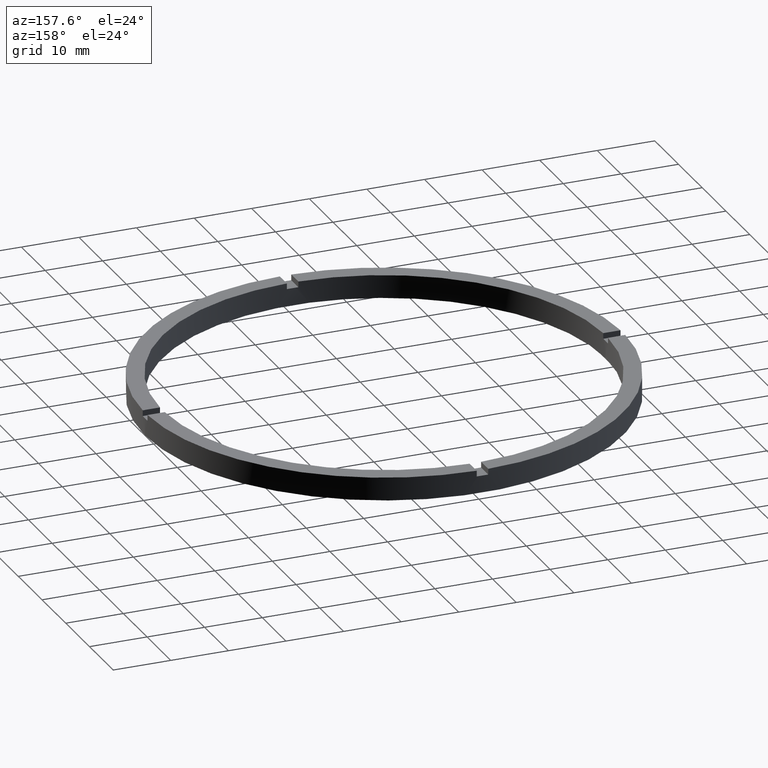
[diagram: clean part render]
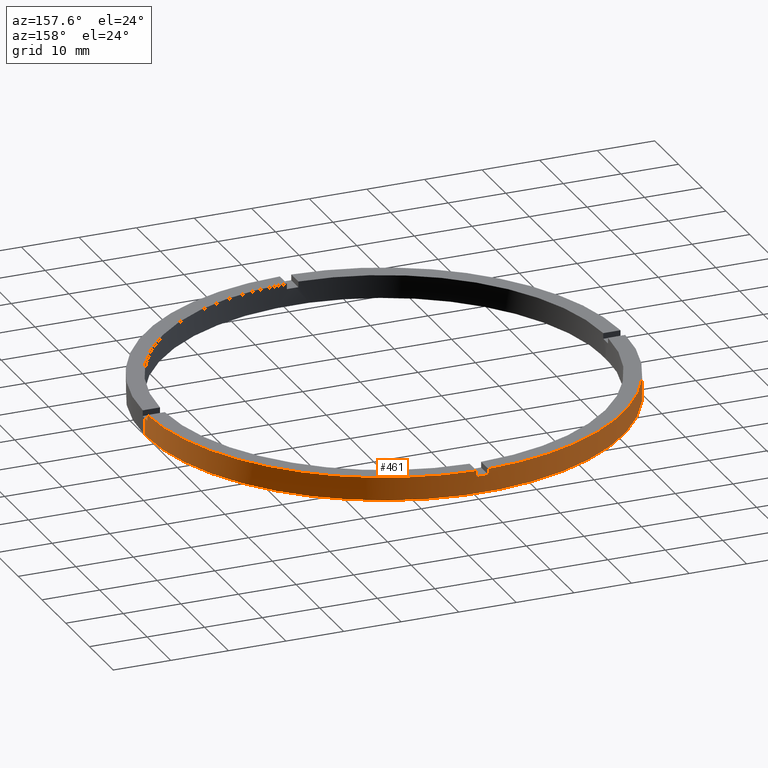
[diagram: same view with one face highlighted and labeled with its STEP entity id]
A machine part, auxiliary view. The second image highlights one B-rep face of the part: STEP entity #461.
In plain terms, the highlighted cylindrical surface (partial cylindrical patch) has radius 41.5 mm, axis along (-0, -0, -1).
Its self-contained STEP definition (entity closure, byte-faithful):
#6 = EDGE_CURVE ( 'NONE', #448, #267, #406, .T. ) ;
#14 = VERTEX_POINT ( 'NONE', #265 ) ;
#16 = VERTEX_POINT ( 'NONE', #416 ) ;
#23 = DIRECTION ( 'NONE',  ( 1.000000000000000000, 0.000000000000000000, 0.000000000000000000 ) ) ;
#24 = VERTEX_POINT ( 'NONE', #132 ) ;
#25 = EDGE_CURVE ( 'NONE', #484, #14, #152, .T. ) ;
#28 = ORIENTED_EDGE ( 'NONE', *, *, #82, .F. ) ;
#30 = ORIENTED_EDGE ( 'NONE', *, *, #25, .F. ) ;
#38 = EDGE_LOOP ( 'NONE', ( #160, #551, #166, #28, #414, #542, #295, #675, #30, #469, #772, #519 ) ) ;
#39 = DIRECTION ( 'NONE',  ( -0.000000000000000000, -0.000000000000000000, -1.000000000000000000 ) ) ;
#47 = CARTESIAN_POINT ( 'NONE',  ( -1.000000000000025757, 41.48795005781799716, 4.000000000000000000 ) ) ;
#50 = AXIS2_PLACEMENT_3D ( 'NONE', #272, #370, #513 ) ;
#51 = CARTESIAN_POINT ( 'NONE',  ( -41.48795005781799716, 0.9999999999999711342, 4.000000000000000000 ) ) ;
#52 = DIRECTION ( 'NONE',  ( 0.000000000000000000, 0.000000000000000000, 1.000000000000000000 ) ) ;
#54 = CARTESIAN_POINT ( 'NONE',  ( 0.000000000000000000, 0.000000000000000000, 4.000000000000000000 ) ) ;
#66 = CARTESIAN_POINT ( 'NONE',  ( -41.50000000000000000, 0.000000000000000000, 4.000000000000000000 ) ) ;
#74 = CARTESIAN_POINT ( 'NONE',  ( -1.000000000000025757, 41.48795005781799716, 4.000000000000000000 ) ) ;
#82 = EDGE_CURVE ( 'NONE', #368, #16, #686, .T. ) ;
#111 = AXIS2_PLACEMENT_3D ( 'NONE', #216, #52, #288 ) ;
#120 = CARTESIAN_POINT ( 'NONE',  ( 41.50000000000000000, 5.082284216461515748E-15, 0.000000000000000000 ) ) ;
#132 = CARTESIAN_POINT ( 'NONE',  ( -41.48795005781799716, 0.9999999999999711342, 3.000000000000000000 ) ) ;
#133 = CARTESIAN_POINT ( 'NONE',  ( 0.9999999999999742428, 41.48795005781799716, 3.000000000000000000 ) ) ;
#141 = DIRECTION ( 'NONE',  ( 0.000000000000000000, 0.000000000000000000, 1.000000000000000000 ) ) ;
#152 = CIRCLE ( 'NONE', #587, 41.50000000000000000 ) ;
#160 = ORIENTED_EDGE ( 'NONE', *, *, #608, .F. ) ;
#161 = VERTEX_POINT ( 'NONE', #120 ) ;
#166 = ORIENTED_EDGE ( 'NONE', *, *, #328, .T. ) ;
#168 = AXIS2_PLACEMENT_3D ( 'NONE', #660, #732, #207 ) ;
#185 = LINE ( 'NONE', #617, #479 ) ;
#200 = CIRCLE ( 'NONE', #642, 41.50000000000000000 ) ;
#207 = DIRECTION ( 'NONE',  ( -1.000000000000000000, 0.000000000000000000, 0.000000000000000000 ) ) ;
#208 = LINE ( 'NONE', #74, #211 ) ;
#211 = VECTOR ( 'NONE', #217, 1000.000000000000000 ) ;
#216 = CARTESIAN_POINT ( 'NONE',  ( 0.000000000000000000, 0.000000000000000000, 3.000000000000000000 ) ) ;
#217 = DIRECTION ( 'NONE',  ( -0.000000000000000000, -0.000000000000000000, -1.000000000000000000 ) ) ;
#228 = VECTOR ( 'NONE', #677, 1000.000000000000000 ) ;
#235 = CIRCLE ( 'NONE', #111, 41.50000000000000000 ) ;
#249 = DIRECTION ( 'NONE',  ( -0.000000000000000000, -0.000000000000000000, -1.000000000000000000 ) ) ;
#265 = CARTESIAN_POINT ( 'NONE',  ( -1.000000000000025757, 41.48795005781799716, 3.000000000000000000 ) ) ;
#267 = VERTEX_POINT ( 'NONE', #342 ) ;
#272 = CARTESIAN_POINT ( 'NONE',  ( 0.000000000000000000, 0.000000000000000000, 4.000000000000000000 ) ) ;
#276 = DIRECTION ( 'NONE',  ( -0.000000000000000000, -0.000000000000000000, -1.000000000000000000 ) ) ;
#282 = CARTESIAN_POINT ( 'NONE',  ( 0.000000000000000000, 0.000000000000000000, 3.000000000000000000 ) ) ;
#288 = DIRECTION ( 'NONE',  ( 1.000000000000000000, 0.000000000000000000, 0.000000000000000000 ) ) ;
#293 = EDGE_CURVE ( 'NONE', #503, #541, #462, .T. ) ;
#295 = ORIENTED_EDGE ( 'NONE', *, *, #293, .F. ) ;
#304 = EDGE_CURVE ( 'NONE', #24, #541, #711, .T. ) ;
#316 = CARTESIAN_POINT ( 'NONE',  ( 41.50000000000000000, 5.082284216461515748E-15, 3.000000000000000000 ) ) ;
#321 = CARTESIAN_POINT ( 'NONE',  ( 41.48795005781800427, 0.9999999999998432365, 4.000000000000000000 ) ) ;
#328 = EDGE_CURVE ( 'NONE', #161, #16, #200, .T. ) ;
#334 = EDGE_CURVE ( 'NONE', #484, #267, #725, .T. ) ;
#342 = CARTESIAN_POINT ( 'NONE',  ( 0.9999999999999742428, 41.48795005781799716, 4.000000000000000000 ) ) ;
#368 = VERTEX_POINT ( 'NONE', #544 ) ;
#370 = DIRECTION ( 'NONE',  ( 0.000000000000000000, 0.000000000000000000, 1.000000000000000000 ) ) ;
#406 = CIRCLE ( 'NONE', #50, 41.50000000000000000 ) ;
#410 = VERTEX_POINT ( 'NONE', #528 ) ;
#413 = EDGE_CURVE ( 'NONE', #503, #14, #208, .T. ) ;
#414 = ORIENTED_EDGE ( 'NONE', *, *, #627, .F. ) ;
#416 = CARTESIAN_POINT ( 'NONE',  ( -41.50000000000000000, 0.000000000000000000, 0.000000000000000000 ) ) ;
#438 = DIRECTION ( 'NONE',  ( 1.000000000000000000, 0.000000000000000000, 0.000000000000000000 ) ) ;
#441 = EDGE_CURVE ( 'NONE', #712, #161, #185, .T. ) ;
#443 = CYLINDRICAL_SURFACE ( 'NONE', #168, 41.50000000000000000 ) ;
#446 = VECTOR ( 'NONE', #249, 1000.000000000000000 ) ;
#448 = VERTEX_POINT ( 'NONE', #321 ) ;
#449 = AXIS2_PLACEMENT_3D ( 'NONE', #458, #570, #23 ) ;
#458 = CARTESIAN_POINT ( 'NONE',  ( 0.000000000000000000, 0.000000000000000000, 3.000000000000000000 ) ) ;
#461 = ADVANCED_FACE ( 'NONE', ( #738 ), #443, .T. ) ;
#462 = CIRCLE ( 'NONE', #537, 41.50000000000000000 ) ;
#469 = ORIENTED_EDGE ( 'NONE', *, *, #334, .T. ) ;
#479 = VECTOR ( 'NONE', #276, 1000.000000000000000 ) ;
#484 = VERTEX_POINT ( 'NONE', #133 ) ;
#487 = VECTOR ( 'NONE', #39, 1000.000000000000000 ) ;
#499 = CIRCLE ( 'NONE', #449, 41.50000000000000000 ) ;
#503 = VERTEX_POINT ( 'NONE', #47 ) ;
#513 = DIRECTION ( 'NONE',  ( 1.000000000000000000, 0.000000000000000000, 0.000000000000000000 ) ) ;
#519 = ORIENTED_EDGE ( 'NONE', *, *, #655, .T. ) ;
#520 = CARTESIAN_POINT ( 'NONE',  ( 0.9999999999999742428, 41.48795005781799716, 4.000000000000000000 ) ) ;
#528 = CARTESIAN_POINT ( 'NONE',  ( 41.48795005781800427, 0.9999999999998432365, 3.000000000000000000 ) ) ;
#536 = DIRECTION ( 'NONE',  ( 1.000000000000000000, 0.000000000000000000, 0.000000000000000000 ) ) ;
#537 = AXIS2_PLACEMENT_3D ( 'NONE', #54, #697, #536 ) ;
#541 = VERTEX_POINT ( 'NONE', #51 ) ;
#542 = ORIENTED_EDGE ( 'NONE', *, *, #304, .T. ) ;
#544 = CARTESIAN_POINT ( 'NONE',  ( -41.50000000000000000, 0.000000000000000000, 3.000000000000000000 ) ) ;
#551 = ORIENTED_EDGE ( 'NONE', *, *, #441, .T. ) ;
#570 = DIRECTION ( 'NONE',  ( 0.000000000000000000, 0.000000000000000000, 1.000000000000000000 ) ) ;
#578 = DIRECTION ( 'NONE',  ( 0.000000000000000000, -0.000000000000000000, 1.000000000000000000 ) ) ;
#587 = AXIS2_PLACEMENT_3D ( 'NONE', #282, #578, #623 ) ;
#594 = CARTESIAN_POINT ( 'NONE',  ( 0.000000000000000000, 0.000000000000000000, 0.000000000000000000 ) ) ;
#605 = CARTESIAN_POINT ( 'NONE',  ( -41.48795005781799716, 0.9999999999999711342, 4.000000000000000000 ) ) ;
#608 = EDGE_CURVE ( 'NONE', #712, #410, #235, .T. ) ;
#617 = CARTESIAN_POINT ( 'NONE',  ( 41.50000000000000000, 5.082284216461515748E-15, 4.000000000000000000 ) ) ;
#623 = DIRECTION ( 'NONE',  ( 1.000000000000000000, 0.000000000000000000, 0.000000000000000000 ) ) ;
#627 = EDGE_CURVE ( 'NONE', #24, #368, #499, .T. ) ;
#642 = AXIS2_PLACEMENT_3D ( 'NONE', #594, #763, #438 ) ;
#655 = EDGE_CURVE ( 'NONE', #448, #410, #768, .T. ) ;
#660 = CARTESIAN_POINT ( 'NONE',  ( 0.000000000000000000, 0.000000000000000000, 4.000000000000000000 ) ) ;
#663 = CARTESIAN_POINT ( 'NONE',  ( 41.48795005781800427, 0.9999999999998432365, 4.000000000000000000 ) ) ;
#675 = ORIENTED_EDGE ( 'NONE', *, *, #413, .T. ) ;
#677 = DIRECTION ( 'NONE',  ( 0.000000000000000000, 0.000000000000000000, 1.000000000000000000 ) ) ;
#686 = LINE ( 'NONE', #66, #446 ) ;
#697 = DIRECTION ( 'NONE',  ( 0.000000000000000000, 0.000000000000000000, 1.000000000000000000 ) ) ;
#711 = LINE ( 'NONE', #605, #228 ) ;
#712 = VERTEX_POINT ( 'NONE', #316 ) ;
#725 = LINE ( 'NONE', #520, #726 ) ;
#726 = VECTOR ( 'NONE', #141, 1000.000000000000000 ) ;
#732 = DIRECTION ( 'NONE',  ( -0.000000000000000000, -0.000000000000000000, -1.000000000000000000 ) ) ;
#738 = FACE_OUTER_BOUND ( 'NONE', #38, .T. ) ;
#763 = DIRECTION ( 'NONE',  ( 0.000000000000000000, 0.000000000000000000, 1.000000000000000000 ) ) ;
#768 = LINE ( 'NONE', #663, #487 ) ;
#772 = ORIENTED_EDGE ( 'NONE', *, *, #6, .F. ) ;